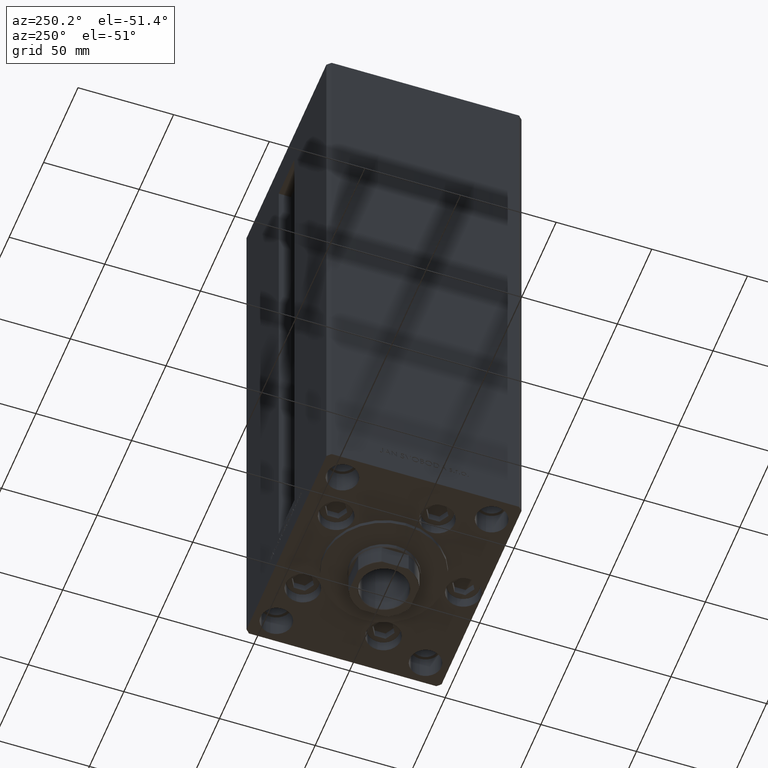
[diagram: clean part render]
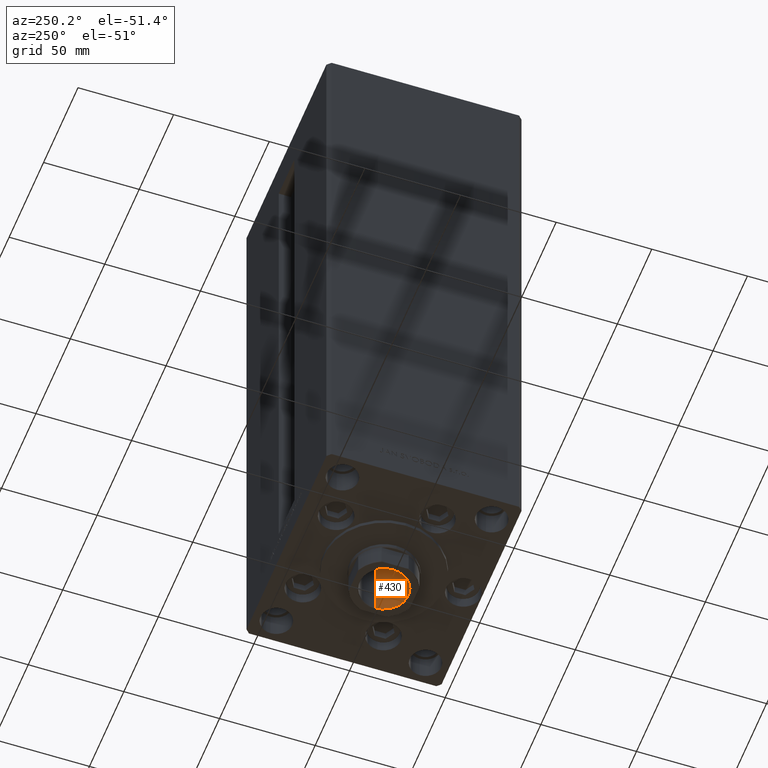
[diagram: same view with one face highlighted and labeled with its STEP entity id]
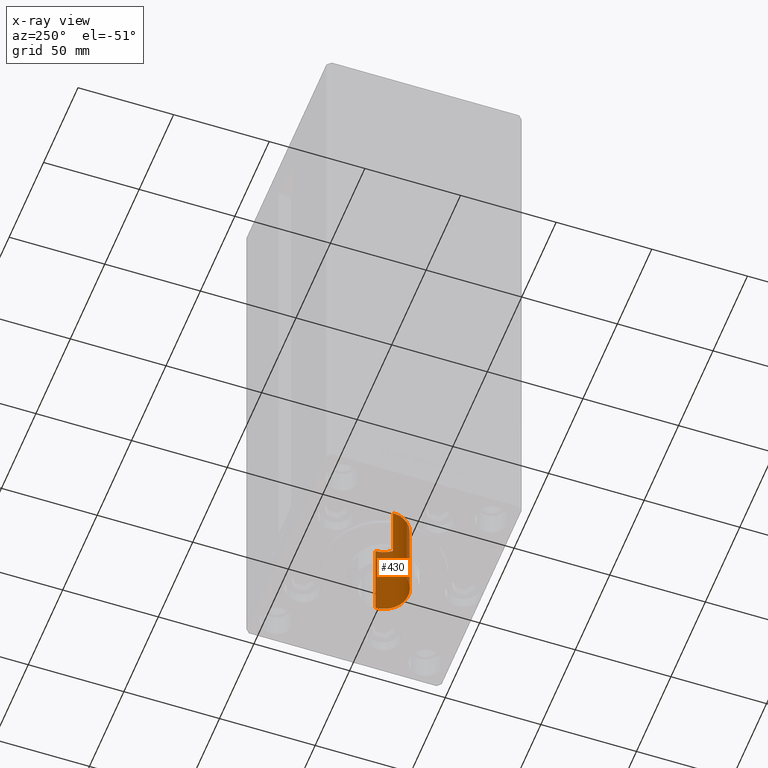
[diagram: x-ray of the same camera — body ghosted, the highlighted face saturated]
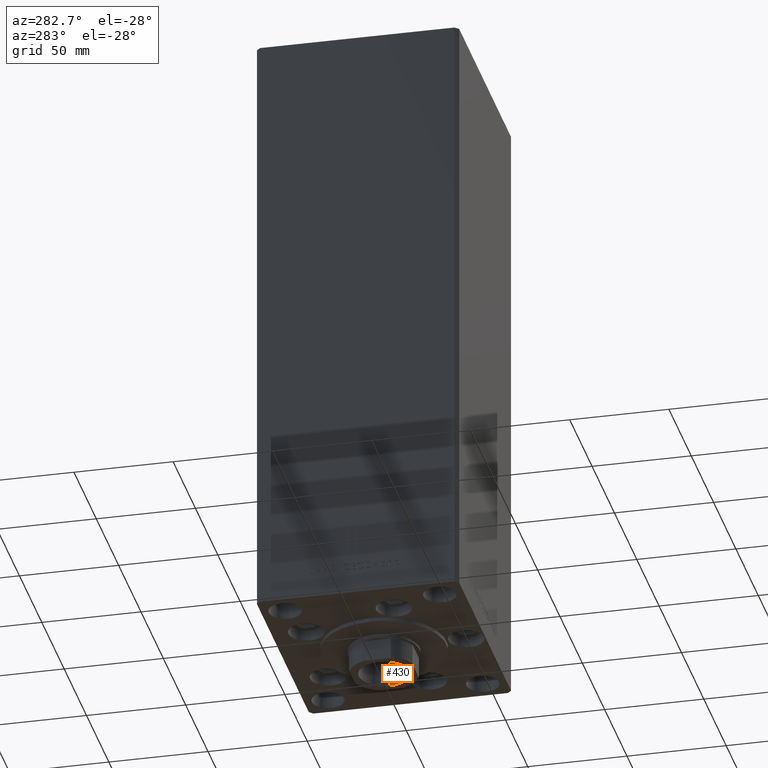
[diagram: same view with one face highlighted and labeled with its STEP entity id]
A machine part, auxiliary view. The second image highlights one B-rep face of the part: STEP entity #430.
The next image is the same camera in x-ray: the body ghosted, the highlighted face saturated — about 11% of this face is hidden behind the body in this view.
A second angle (auxiliary view) of the same face is appended — the face is thin or edge-on in the first view.
In plain terms, the highlighted cylindrical surface (edge-blend (fillet) strip) has radius 12.75 mm, axis along (0, 0, -1).
Its self-contained STEP definition (entity closure, byte-faithful):
#430 = ADVANCED_FACE ( 'NONE', ( #18939 ), #29877, .F. ) ;
#1140 = VERTEX_POINT ( 'NONE', #30504 ) ;
#1499 = DIRECTION ( 'NONE',  ( 0.000000000000000000, 0.000000000000000000, 1.000000000000000000 ) ) ;
#1741 = VERTEX_POINT ( 'NONE', #19815 ) ;
#2239 = AXIS2_PLACEMENT_3D ( 'NONE', #14848, #26531, #22810 ) ;
#3097 = ORIENTED_EDGE ( 'NONE', *, *, #47175, .F. ) ;
#6577 = DIRECTION ( 'NONE',  ( -0.000000000000000000, -0.000000000000000000, 1.000000000000000000 ) ) ;
#7068 = LINE ( 'NONE', #10766, #32250 ) ;
#9179 = CARTESIAN_POINT ( 'NONE',  ( 0.000000000000000000, 0.000000000000000000, 288.9499999999999318 ) ) ;
#9561 = ORIENTED_EDGE ( 'NONE', *, *, #43814, .F. ) ;
#9638 = ORIENTED_EDGE ( 'NONE', *, *, #17704, .T. ) ;
#9988 = AXIS2_PLACEMENT_3D ( 'NONE', #14963, #26395, #15216 ) ;
#10766 = CARTESIAN_POINT ( 'NONE',  ( 12.74999999999999467, 0.000000000000000000, 289.2500000000000000 ) ) ;
#14192 = CIRCLE ( 'NONE', #31644, 12.74999999999999467 ) ;
#14652 = VECTOR ( 'NONE', #6577, 1000.000000000000000 ) ;
#14848 = CARTESIAN_POINT ( 'NONE',  ( 0.000000000000000000, 0.000000000000000000, 244.2500000000000284 ) ) ;
#14963 = CARTESIAN_POINT ( 'NONE',  ( 0.000000000000000000, 0.000000000000000000, 289.2500000000000000 ) ) ;
#15216 = DIRECTION ( 'NONE',  ( 1.000000000000000000, 0.000000000000000000, 0.000000000000000000 ) ) ;
#16889 = CARTESIAN_POINT ( 'NONE',  ( -12.74999999999999112, 1.561424668912874125E-15, 244.2500000000000284 ) ) ;
#17704 = EDGE_CURVE ( 'NONE', #30733, #1741, #40618, .T. ) ;
#18123 = VERTEX_POINT ( 'NONE', #28268 ) ;
#18939 = FACE_OUTER_BOUND ( 'NONE', #30546, .T. ) ;
#19815 = CARTESIAN_POINT ( 'NONE',  ( -12.74999999999999467, 1.561424668912874519E-15, 288.9499999999999318 ) ) ;
#22049 = CIRCLE ( 'NONE', #2239, 12.74999999999999112 ) ;
#22810 = DIRECTION ( 'NONE',  ( 1.000000000000000000, 0.000000000000000000, 0.000000000000000000 ) ) ;
#24607 = DIRECTION ( 'NONE',  ( 1.000000000000000000, 0.000000000000000000, 0.000000000000000000 ) ) ;
#26395 = DIRECTION ( 'NONE',  ( -0.000000000000000000, -0.000000000000000000, 1.000000000000000000 ) ) ;
#26531 = DIRECTION ( 'NONE',  ( -0.000000000000000000, -0.000000000000000000, 1.000000000000000000 ) ) ;
#28268 = CARTESIAN_POINT ( 'NONE',  ( 12.74999999999999467, 0.000000000000000000, 288.9499999999999318 ) ) ;
#29877 = CYLINDRICAL_SURFACE ( 'NONE', #9988, 12.74999999999999467 ) ;
#30504 = CARTESIAN_POINT ( 'NONE',  ( 12.74999999999999112, 0.000000000000000000, 244.2500000000000284 ) ) ;
#30546 = EDGE_LOOP ( 'NONE', ( #3097, #9638, #47602, #9561 ) ) ;
#30733 = VERTEX_POINT ( 'NONE', #16889 ) ;
#30772 = EDGE_CURVE ( 'NONE', #1741, #18123, #14192, .T. ) ;
#31644 = AXIS2_PLACEMENT_3D ( 'NONE', #9179, #1499, #24607 ) ;
#32250 = VECTOR ( 'NONE', #41107, 1000.000000000000000 ) ;
#36413 = CARTESIAN_POINT ( 'NONE',  ( -12.74999999999999467, 1.561424668912874519E-15, 289.2500000000000000 ) ) ;
#40618 = LINE ( 'NONE', #36413, #14652 ) ;
#41107 = DIRECTION ( 'NONE',  ( -0.000000000000000000, -0.000000000000000000, 1.000000000000000000 ) ) ;
#43814 = EDGE_CURVE ( 'NONE', #1140, #18123, #7068, .T. ) ;
#47175 = EDGE_CURVE ( 'NONE', #30733, #1140, #22049, .T. ) ;
#47602 = ORIENTED_EDGE ( 'NONE', *, *, #30772, .T. ) ;